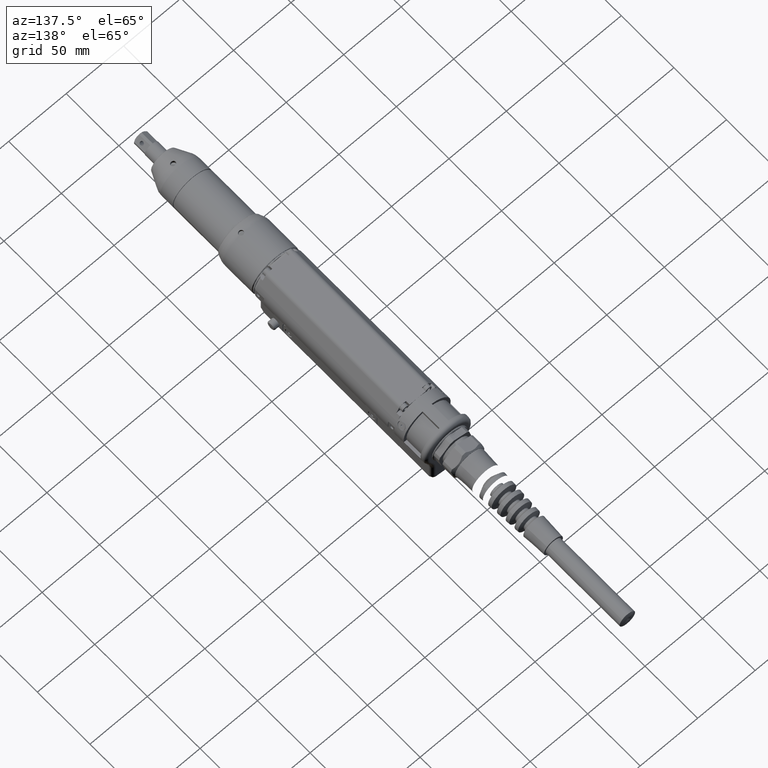
[diagram: clean part render]
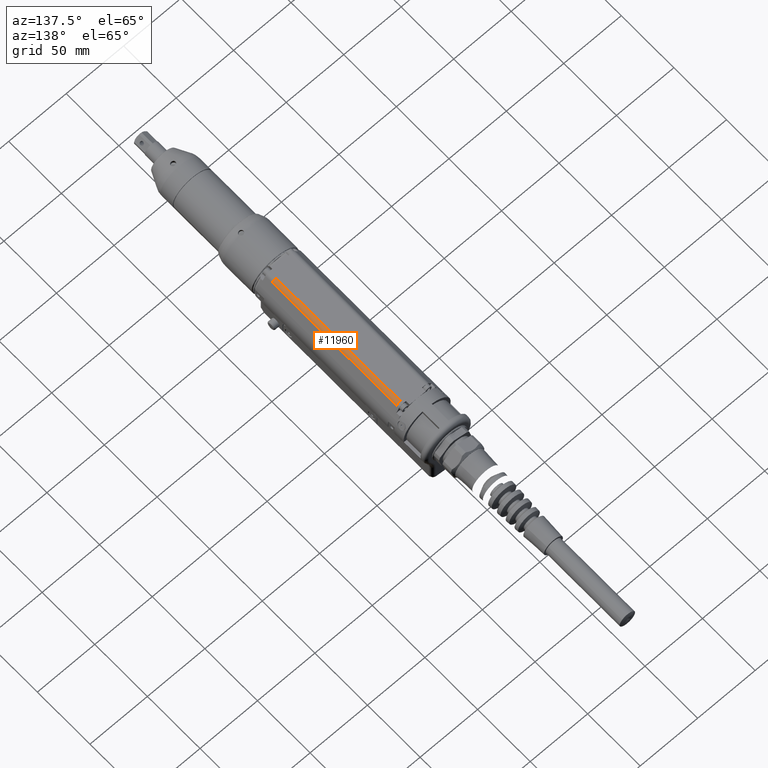
[diagram: same view with one face highlighted and labeled with its STEP entity id]
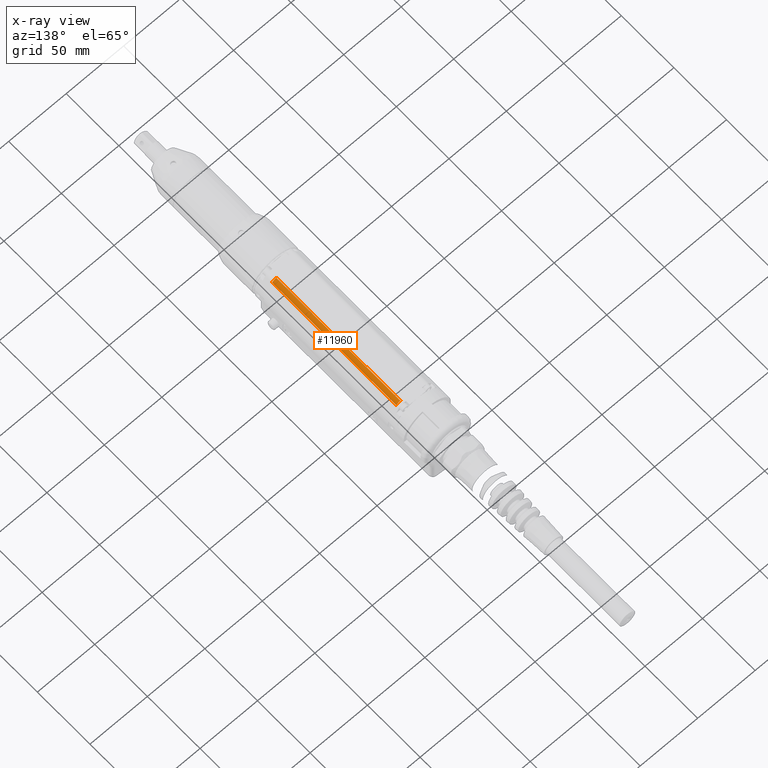
[diagram: x-ray of the same camera — body ghosted, the highlighted face saturated]
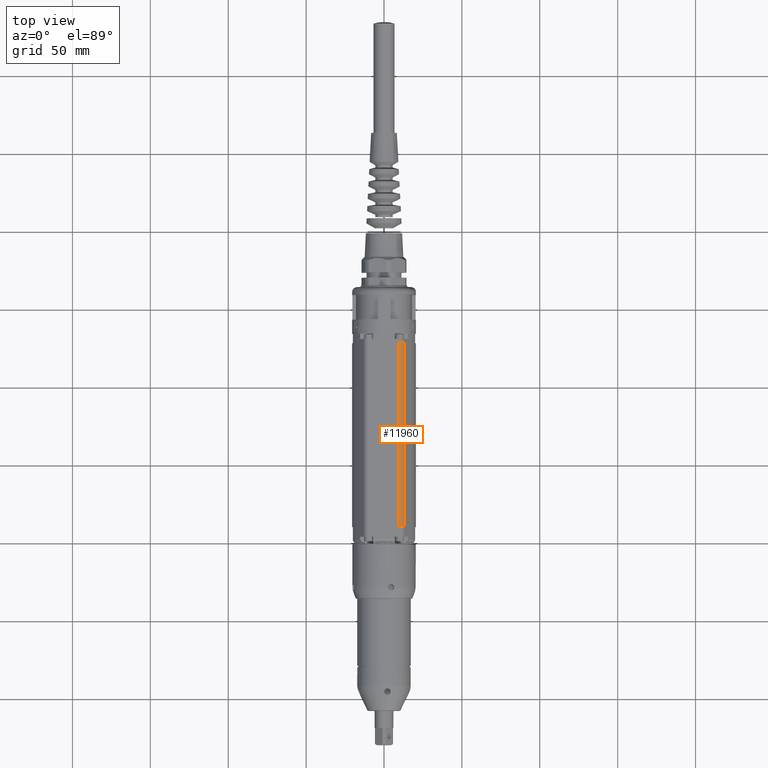
[diagram: same view with one face highlighted and labeled with its STEP entity id]
A machine part, auxiliary view. The second image highlights one B-rep face of the part: STEP entity #11960.
The next image is the same camera in x-ray: the body ghosted, the highlighted face saturated — about 0% of this face is hidden behind the body in this view.
A second angle (top view) of the same face is appended — the face is thin or edge-on in the first view.
In plain terms, the highlighted cylindrical surface (edge-blend (fillet) strip) has radius 4 mm, axis along (-0, -1, -0).
Its self-contained STEP definition (entity closure, byte-faithful):
#1554=FACE_OUTER_BOUND('',#2269,.T.);
#2269=EDGE_LOOP('',(#8489,#8490,#8491,#8492));
#3111=LINE('',#18180,#4000);
#3114=LINE('',#18188,#4003);
#4000=VECTOR('',#14319,10.);
#4003=VECTOR('',#14326,10.);
#4837=CIRCLE('',#12776,3.99999999999999);
#4838=CIRCLE('',#12777,3.99999999999999);
#5550=VERTEX_POINT('',#18177);
#5551=VERTEX_POINT('',#18179);
#5553=VERTEX_POINT('',#18185);
#5554=VERTEX_POINT('',#18187);
#6698=EDGE_CURVE('',#5550,#5551,#3111,.T.);
#6701=EDGE_CURVE('',#5550,#5553,#4837,.T.);
#6702=EDGE_CURVE('',#5553,#5554,#3114,.T.);
#6703=EDGE_CURVE('',#5551,#5554,#4838,.T.);
#8489=ORIENTED_EDGE('',*,*,#6701,.T.);
#8490=ORIENTED_EDGE('',*,*,#6702,.T.);
#8491=ORIENTED_EDGE('',*,*,#6703,.F.);
#8492=ORIENTED_EDGE('',*,*,#6698,.F.);
#11693=CYLINDRICAL_SURFACE('',#12775,3.99999999999999);
#11960=ADVANCED_FACE('',(#1554),#11693,.T.);
#12775=AXIS2_PLACEMENT_3D('',#18184,#14322,#14323);
#12776=AXIS2_PLACEMENT_3D('',#18186,#14324,#14325);
#12777=AXIS2_PLACEMENT_3D('',#18189,#14327,#14328);
#14319=DIRECTION('',(-1.15255911821437E-13,-1.,-6.66133814775086E-16));
#14322=DIRECTION('center_axis',(-1.15255911821437E-13,-1.,-6.66133814775086E-16));
#14323=DIRECTION('ref_axis',(0.866025403784749,-1.00147614481126E-13,0.499999999999463));
#14324=DIRECTION('center_axis',(-1.15255911821437E-13,-1.,-6.66133814775086E-16));
#14325=DIRECTION('ref_axis',(0.866025403784749,-1.00147614481126E-13,0.499999999999463));
#14326=DIRECTION('',(-1.15255911821437E-13,-1.,-6.66133814775086E-16));
#14327=DIRECTION('center_axis',(-1.15255911821437E-13,-1.,-6.66133814775086E-16));
#14328=DIRECTION('ref_axis',(0.866025403784749,-1.00147614481126E-13,0.499999999999463));
#18177=CARTESIAN_POINT('',(12.9903810567782,127.999999999997,18.4999999999924));
#18179=CARTESIAN_POINT('',(12.9903810567646,9.99999999999734,18.4999999999923));
#18180=CARTESIAN_POINT('',(12.9903810567782,127.999999999997,18.4999999999924));
#18184=CARTESIAN_POINT('Origin',(9.52627944163922,127.999999999998,16.4999999999946));
#18185=CARTESIAN_POINT('',(9.5262794416417,127.999999999998,20.4999999999946));
#18186=CARTESIAN_POINT('Origin',(9.52627944163922,127.999999999998,16.4999999999946));
#18187=CARTESIAN_POINT('',(9.5262794416281,9.99999999999773,20.4999999999945));
#18188=CARTESIAN_POINT('',(9.5262794416417,127.999999999998,20.4999999999946));
#18189=CARTESIAN_POINT('Origin',(9.52627944162562,9.99999999999774,16.4999999999945));